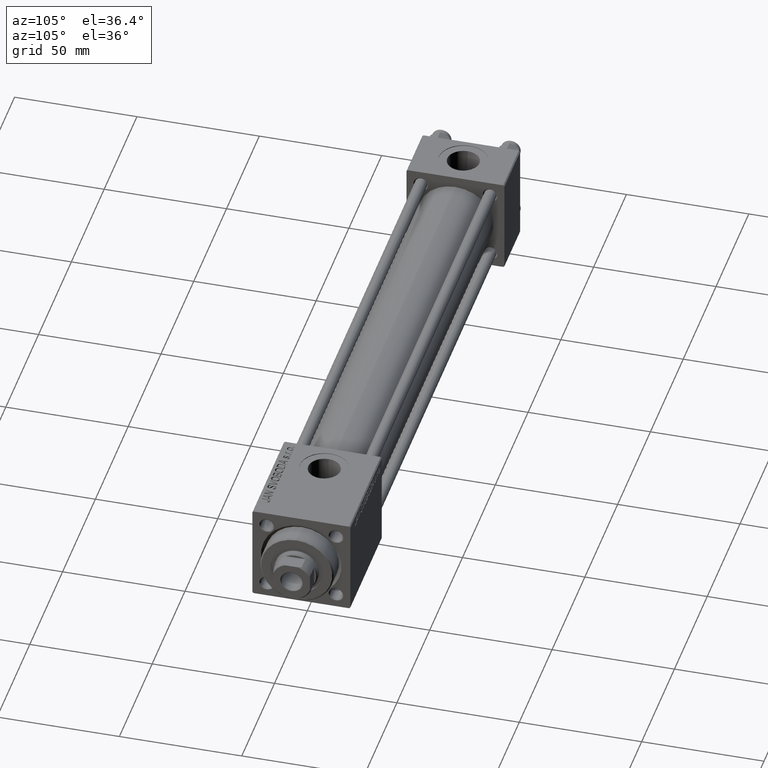
[diagram: clean part render]
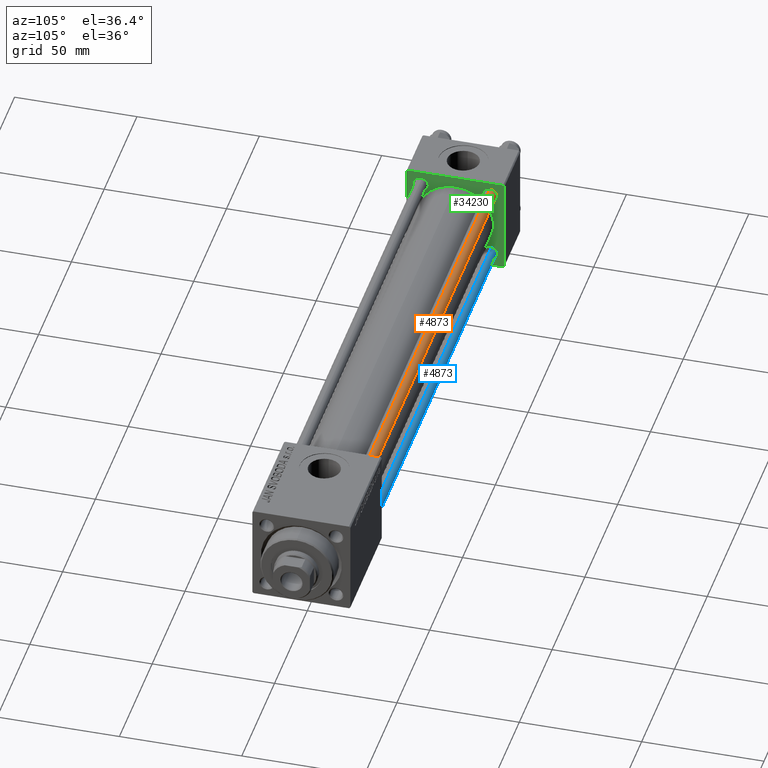
[diagram: same view with three faces highlighted in distinct colors, each labeled with its STEP entity id]
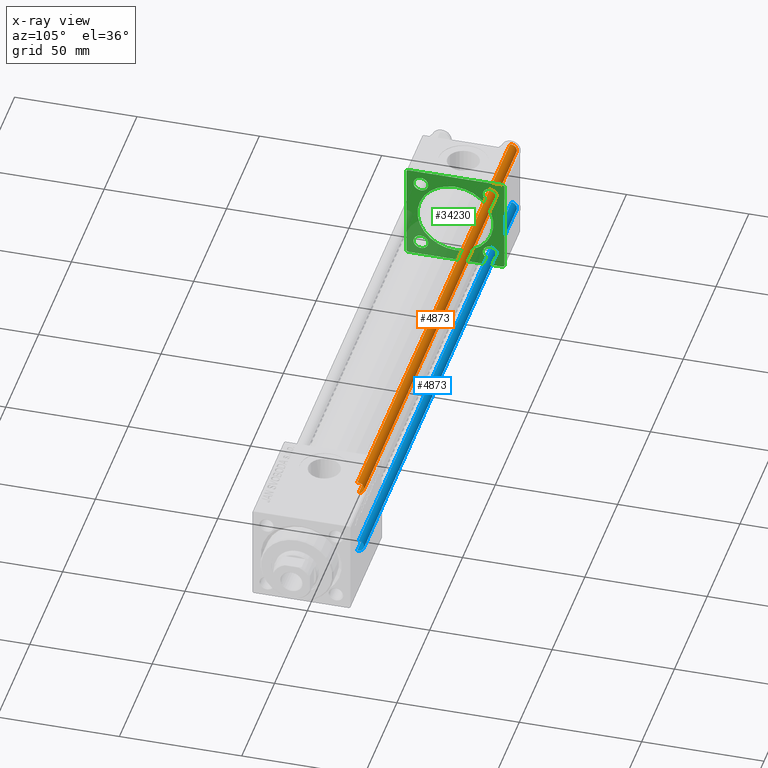
[diagram: x-ray of the same camera — body ghosted, the three highlighted faces saturated]
A machine part, auxiliary view with three faces highlighted in distinct colors.
The next image is the same camera in x-ray (body ghosted, the three faces saturated) — at least one of them is partly hidden behind the body in this view.
Their STEP definitions:

[orange] entity #4873 — the highlighted cylindrical surface (edge-blend (fillet) strip) has radius 2.5 mm, axis along (-1, 0, 0).
#599 = DIRECTION ( 'NONE',  ( -0.000000000000000000, -0.000000000000000000, 1.000000000000000000 ) ) ;
#1707 = EDGE_CURVE ( 'NONE', #17046, #14481, #45787, .T. ) ;
#2051 = DIRECTION ( 'NONE',  ( -0.000000000000000000, -0.000000000000000000, -1.000000000000000000 ) ) ;
#2419 = CIRCLE ( 'NONE', #20934, 2.500000000000000000 ) ;
#2441 = ORIENTED_EDGE ( 'NONE', *, *, #7138, .T. ) ;
#3160 = VERTEX_POINT ( 'NONE', #46128 ) ;
#4580 = EDGE_LOOP ( 'NONE', ( #50824, #2441, #40795, #43653 ) ) ;
#4873 = ADVANCED_FACE ( 'NONE', ( #44772 ), #32668, .T. ) ;
#7138 = EDGE_CURVE ( 'NONE', #20072, #3160, #48231, .T. ) ;
#7643 = DIRECTION ( 'NONE',  ( -0.000000000000000000, -0.000000000000000000, -1.000000000000000000 ) ) ;
#8498 = AXIS2_PLACEMENT_3D ( 'NONE', #17162, #48801, #41402 ) ;
#13311 = CARTESIAN_POINT ( 'NONE',  ( 2.500000000000000000, 3.061616997868383141E-16, 233.5000000000000284 ) ) ;
#14481 = VERTEX_POINT ( 'NONE', #24799 ) ;
#16658 = DIRECTION ( 'NONE',  ( 1.000000000000000000, 0.000000000000000000, 0.000000000000000000 ) ) ;
#17046 = VERTEX_POINT ( 'NONE', #17720 ) ;
#17162 = CARTESIAN_POINT ( 'NONE',  ( 0.000000000000000000, 0.000000000000000000, 233.5000000000000284 ) ) ;
#17720 = CARTESIAN_POINT ( 'NONE',  ( -2.500000000000000000, 0.000000000000000000, 233.5000000000000284 ) ) ;
#20072 = VERTEX_POINT ( 'NONE', #13311 ) ;
#20614 = CARTESIAN_POINT ( 'NONE',  ( 0.000000000000000000, 0.000000000000000000, 0.5000000000000281997 ) ) ;
#20934 = AXIS2_PLACEMENT_3D ( 'NONE', #20614, #599, #16658 ) ;
#21064 = DIRECTION ( 'NONE',  ( -1.000000000000000000, 0.000000000000000000, 0.000000000000000000 ) ) ;
#21587 = DIRECTION ( 'NONE',  ( -0.000000000000000000, -0.000000000000000000, -1.000000000000000000 ) ) ;
#23427 = EDGE_CURVE ( 'NONE', #3160, #14481, #2419, .T. ) ;
#23556 = VECTOR ( 'NONE', #2051, 1000.000000000000000 ) ;
#24799 = CARTESIAN_POINT ( 'NONE',  ( -2.500000000000000000, 0.000000000000000000, 0.5000000000000281997 ) ) ;
#32668 = CYLINDRICAL_SURFACE ( 'NONE', #37952, 2.500000000000000000 ) ;
#34596 = CIRCLE ( 'NONE', #8498, 2.500000000000000000 ) ;
#36382 = VECTOR ( 'NONE', #7643, 1000.000000000000000 ) ;
#37952 = AXIS2_PLACEMENT_3D ( 'NONE', #48748, #21587, #21064 ) ;
#38078 = EDGE_CURVE ( 'NONE', #17046, #20072, #34596, .T. ) ;
#38141 = CARTESIAN_POINT ( 'NONE',  ( -2.500000000000000000, 0.000000000000000000, 234.0000000000000000 ) ) ;
#39537 = CARTESIAN_POINT ( 'NONE',  ( 2.500000000000000000, 3.061616997868383141E-16, 234.0000000000000000 ) ) ;
#40795 = ORIENTED_EDGE ( 'NONE', *, *, #23427, .T. ) ;
#41402 = DIRECTION ( 'NONE',  ( 1.000000000000000000, 0.000000000000000000, 0.000000000000000000 ) ) ;
#43653 = ORIENTED_EDGE ( 'NONE', *, *, #1707, .F. ) ;
#44772 = FACE_OUTER_BOUND ( 'NONE', #4580, .T. ) ;
#45787 = LINE ( 'NONE', #38141, #23556 ) ;
#46128 = CARTESIAN_POINT ( 'NONE',  ( 2.500000000000000000, 3.061616997868383141E-16, 0.5000000000000281997 ) ) ;
#48231 = LINE ( 'NONE', #39537, #36382 ) ;
#48748 = CARTESIAN_POINT ( 'NONE',  ( 0.000000000000000000, 0.000000000000000000, 234.0000000000000000 ) ) ;
#48801 = DIRECTION ( 'NONE',  ( 0.000000000000000000, 0.000000000000000000, -1.000000000000000000 ) ) ;
#50824 = ORIENTED_EDGE ( 'NONE', *, *, #38078, .T. ) ;

[blue] entity #4873 — the highlighted cylindrical surface (edge-blend (fillet) strip) has radius 2.5 mm, axis along (1, -0, 0).
#599 = DIRECTION ( 'NONE',  ( -0.000000000000000000, -0.000000000000000000, 1.000000000000000000 ) ) ;
#1707 = EDGE_CURVE ( 'NONE', #17046, #14481, #45787, .T. ) ;
#2051 = DIRECTION ( 'NONE',  ( -0.000000000000000000, -0.000000000000000000, -1.000000000000000000 ) ) ;
#2419 = CIRCLE ( 'NONE', #20934, 2.500000000000000000 ) ;
#2441 = ORIENTED_EDGE ( 'NONE', *, *, #7138, .T. ) ;
#3160 = VERTEX_POINT ( 'NONE', #46128 ) ;
#4580 = EDGE_LOOP ( 'NONE', ( #50824, #2441, #40795, #43653 ) ) ;
#4873 = ADVANCED_FACE ( 'NONE', ( #44772 ), #32668, .T. ) ;
#7138 = EDGE_CURVE ( 'NONE', #20072, #3160, #48231, .T. ) ;
#7643 = DIRECTION ( 'NONE',  ( -0.000000000000000000, -0.000000000000000000, -1.000000000000000000 ) ) ;
#8498 = AXIS2_PLACEMENT_3D ( 'NONE', #17162, #48801, #41402 ) ;
#13311 = CARTESIAN_POINT ( 'NONE',  ( 2.500000000000000000, 3.061616997868383141E-16, 233.5000000000000284 ) ) ;
#14481 = VERTEX_POINT ( 'NONE', #24799 ) ;
#16658 = DIRECTION ( 'NONE',  ( 1.000000000000000000, 0.000000000000000000, 0.000000000000000000 ) ) ;
#17046 = VERTEX_POINT ( 'NONE', #17720 ) ;
#17162 = CARTESIAN_POINT ( 'NONE',  ( 0.000000000000000000, 0.000000000000000000, 233.5000000000000284 ) ) ;
#17720 = CARTESIAN_POINT ( 'NONE',  ( -2.500000000000000000, 0.000000000000000000, 233.5000000000000284 ) ) ;
#20072 = VERTEX_POINT ( 'NONE', #13311 ) ;
#20614 = CARTESIAN_POINT ( 'NONE',  ( 0.000000000000000000, 0.000000000000000000, 0.5000000000000281997 ) ) ;
#20934 = AXIS2_PLACEMENT_3D ( 'NONE', #20614, #599, #16658 ) ;
#21064 = DIRECTION ( 'NONE',  ( -1.000000000000000000, 0.000000000000000000, 0.000000000000000000 ) ) ;
#21587 = DIRECTION ( 'NONE',  ( -0.000000000000000000, -0.000000000000000000, -1.000000000000000000 ) ) ;
#23427 = EDGE_CURVE ( 'NONE', #3160, #14481, #2419, .T. ) ;
#23556 = VECTOR ( 'NONE', #2051, 1000.000000000000000 ) ;
#24799 = CARTESIAN_POINT ( 'NONE',  ( -2.500000000000000000, 0.000000000000000000, 0.5000000000000281997 ) ) ;
#32668 = CYLINDRICAL_SURFACE ( 'NONE', #37952, 2.500000000000000000 ) ;
#34596 = CIRCLE ( 'NONE', #8498, 2.500000000000000000 ) ;
#36382 = VECTOR ( 'NONE', #7643, 1000.000000000000000 ) ;
#37952 = AXIS2_PLACEMENT_3D ( 'NONE', #48748, #21587, #21064 ) ;
#38078 = EDGE_CURVE ( 'NONE', #17046, #20072, #34596, .T. ) ;
#38141 = CARTESIAN_POINT ( 'NONE',  ( -2.500000000000000000, 0.000000000000000000, 234.0000000000000000 ) ) ;
#39537 = CARTESIAN_POINT ( 'NONE',  ( 2.500000000000000000, 3.061616997868383141E-16, 234.0000000000000000 ) ) ;
#40795 = ORIENTED_EDGE ( 'NONE', *, *, #23427, .T. ) ;
#41402 = DIRECTION ( 'NONE',  ( 1.000000000000000000, 0.000000000000000000, 0.000000000000000000 ) ) ;
#43653 = ORIENTED_EDGE ( 'NONE', *, *, #1707, .F. ) ;
#44772 = FACE_OUTER_BOUND ( 'NONE', #4580, .T. ) ;
#45787 = LINE ( 'NONE', #38141, #23556 ) ;
#46128 = CARTESIAN_POINT ( 'NONE',  ( 2.500000000000000000, 3.061616997868383141E-16, 0.5000000000000281997 ) ) ;
#48231 = LINE ( 'NONE', #39537, #36382 ) ;
#48748 = CARTESIAN_POINT ( 'NONE',  ( 0.000000000000000000, 0.000000000000000000, 234.0000000000000000 ) ) ;
#48801 = DIRECTION ( 'NONE',  ( 0.000000000000000000, 0.000000000000000000, -1.000000000000000000 ) ) ;
#50824 = ORIENTED_EDGE ( 'NONE', *, *, #38078, .T. ) ;

[green] entity #34230 — the highlighted planar face has unit normal (-1, 0, 0).
#442 = ORIENTED_EDGE ( 'NONE', *, *, #37705, .T. ) ;
#463 = CARTESIAN_POINT ( 'NONE',  ( 24.00000000000000000, -14.14999999999999503, -14.15000000000000391 ) ) ;
#851 = LINE ( 'NONE', #48809, #19783 ) ;
#1072 = CARTESIAN_POINT ( 'NONE',  ( 24.00000000000000000, 14.14999999999999858, 14.15000000000000036 ) ) ;
#1080 = VERTEX_POINT ( 'NONE', #1981 ) ;
#1460 = CARTESIAN_POINT ( 'NONE',  ( 24.00000000000000000, -14.14999999999999503, 14.15000000000000391 ) ) ;
#1609 = ORIENTED_EDGE ( 'NONE', *, *, #9978, .T. ) ;
#1680 = CARTESIAN_POINT ( 'NONE',  ( 24.00000000000000000, -14.14999999999999503, 11.15000000000000036 ) ) ;
#1981 = CARTESIAN_POINT ( 'NONE',  ( 24.00000000000000000, -14.14999999999999503, -11.15000000000000036 ) ) ;
#2556 = DIRECTION ( 'NONE',  ( 0.000000000000000000, -1.000000000000000000, -2.602085213965210149E-16 ) ) ;
#2615 = VERTEX_POINT ( 'NONE', #1680 ) ;
#2995 = CARTESIAN_POINT ( 'NONE',  ( 24.00000000000000000, -14.14999999999999503, 14.15000000000000391 ) ) ;
#3156 = DIRECTION ( 'NONE',  ( 0.000000000000000000, 0.000000000000000000, 1.000000000000000000 ) ) ;
#3511 = CARTESIAN_POINT ( 'NONE',  ( 24.00000000000000000, 19.50000000000000711, -20.00000000000000711 ) ) ;
#4447 = CIRCLE ( 'NONE', #33849, 15.50000000000000000 ) ;
#4498 = PLANE ( 'NONE',  #42834 ) ;
#4561 = VERTEX_POINT ( 'NONE', #3511 ) ;
#4825 = LINE ( 'NONE', #12222, #10238 ) ;
#4953 = ORIENTED_EDGE ( 'NONE', *, *, #47689, .T. ) ;
#5913 = CARTESIAN_POINT ( 'NONE',  ( 24.00000000000000000, -14.14999999999999503, 17.15000000000000924 ) ) ;
#6017 = CARTESIAN_POINT ( 'NONE',  ( 24.00000000000000000, 14.14999999999999858, 17.14999999999994884 ) ) ;
#6049 = AXIS2_PLACEMENT_3D ( 'NONE', #27717, #23774, #19564 ) ;
#6065 = DIRECTION ( 'NONE',  ( 0.000000000000000000, 0.000000000000000000, -1.000000000000000000 ) ) ;
#6386 = AXIS2_PLACEMENT_3D ( 'NONE', #29707, #8910, #45785 ) ;
#6450 = EDGE_LOOP ( 'NONE', ( #14602, #23912 ) ) ;
#6529 = DIRECTION ( 'NONE',  ( 0.000000000000000000, 8.673617379884036705E-17, -1.000000000000000000 ) ) ;
#6902 = EDGE_LOOP ( 'NONE', ( #28058, #31134 ) ) ;
#7105 = CARTESIAN_POINT ( 'NONE',  ( 24.00000000000000000, 20.00000000000000000, 20.00000000000000000 ) ) ;
#7188 = CARTESIAN_POINT ( 'NONE',  ( 24.00000000000000000, 20.00000000000000000, 19.49999999999999289 ) ) ;
#7289 = VERTEX_POINT ( 'NONE', #39417 ) ;
#7382 = ORIENTED_EDGE ( 'NONE', *, *, #50593, .T. ) ;
#7577 = CARTESIAN_POINT ( 'NONE',  ( 24.00000000000000000, -14.14999999999999503, -17.15000000000000924 ) ) ;
#7715 = DIRECTION ( 'NONE',  ( -1.000000000000000000, -0.000000000000000000, -0.000000000000000000 ) ) ;
#8046 = AXIS2_PLACEMENT_3D ( 'NONE', #463, #9390, #8613 ) ;
#8295 = CIRCLE ( 'NONE', #30174, 3.000000000000004441 ) ;
#8363 = EDGE_CURVE ( 'NONE', #43205, #7289, #4447, .T. ) ;
#8613 = DIRECTION ( 'NONE',  ( 0.000000000000000000, 0.000000000000000000, 1.000000000000000000 ) ) ;
#8910 = DIRECTION ( 'NONE',  ( -1.000000000000000000, -0.000000000000000000, -0.000000000000000000 ) ) ;
#8951 = EDGE_CURVE ( 'NONE', #7289, #43205, #22114, .T. ) ;
#8963 = CARTESIAN_POINT ( 'NONE',  ( 24.00000000000000000, 0.000000000000000000, 0.000000000000000000 ) ) ;
#8966 = CARTESIAN_POINT ( 'NONE',  ( 23.99999999999999289, -2.602085213965210642E-15, 0.000000000000000000 ) ) ;
#9390 = DIRECTION ( 'NONE',  ( -1.000000000000000000, -0.000000000000000000, -0.000000000000000000 ) ) ;
#9485 = FACE_BOUND ( 'NONE', #23583, .T. ) ;
#9978 = EDGE_CURVE ( 'NONE', #28314, #38917, #15311, .T. ) ;
#10238 = VECTOR ( 'NONE', #36719, 1000.000000000000114 ) ;
#10477 = CARTESIAN_POINT ( 'NONE',  ( 24.00000000000000000, -20.00000000000000355, 19.99999999999998934 ) ) ;
#12222 = CARTESIAN_POINT ( 'NONE',  ( 24.00000000000000000, -20.00000000000000355, 19.49999999999998224 ) ) ;
#12669 = CARTESIAN_POINT ( 'NONE',  ( 24.00000000000000000, 14.14999999999999858, -14.15000000000000036 ) ) ;
#12923 = FACE_BOUND ( 'NONE', #48537, .T. ) ;
#13096 = VERTEX_POINT ( 'NONE', #30984 ) ;
#13481 = CARTESIAN_POINT ( 'NONE',  ( 24.00000000000000000, 14.14999999999999858, 11.15000000000005365 ) ) ;
#14439 = AXIS2_PLACEMENT_3D ( 'NONE', #38979, #46624, #3156 ) ;
#14460 = DIRECTION ( 'NONE',  ( -0.000000000000000000, 0.7071067811865524577, 0.7071067811865426878 ) ) ;
#14602 = ORIENTED_EDGE ( 'NONE', *, *, #8363, .F. ) ;
#14621 = ORIENTED_EDGE ( 'NONE', *, *, #24558, .F. ) ;
#15311 = CIRCLE ( 'NONE', #6049, 2.999999999999948930 ) ;
#15676 = VERTEX_POINT ( 'NONE', #45862 ) ;
#15763 = ORIENTED_EDGE ( 'NONE', *, *, #50078, .F. ) ;
#16612 = DIRECTION ( 'NONE',  ( -0.000000000000000000, 0.000000000000000000, 1.000000000000000000 ) ) ;
#16618 = DIRECTION ( 'NONE',  ( 0.000000000000000000, 0.000000000000000000, 1.000000000000000000 ) ) ;
#16886 = CIRCLE ( 'NONE', #46328, 2.999999999999948930 ) ;
#16910 = DIRECTION ( 'NONE',  ( 0.000000000000000000, 0.000000000000000000, 1.000000000000000000 ) ) ;
#17139 = DIRECTION ( 'NONE',  ( -1.000000000000000000, -0.000000000000000000, -0.000000000000000000 ) ) ;
#17377 = AXIS2_PLACEMENT_3D ( 'NONE', #39004, #23458, #50598 ) ;
#18077 = LINE ( 'NONE', #30704, #50048 ) ;
#18152 = CIRCLE ( 'NONE', #39224, 3.000000000000004441 ) ;
#18241 = VERTEX_POINT ( 'NONE', #28431 ) ;
#18673 = CARTESIAN_POINT ( 'NONE',  ( 24.00000000000000000, 20.00000000000000000, -19.50000000000002132 ) ) ;
#19051 = LINE ( 'NONE', #43808, #35183 ) ;
#19074 = EDGE_LOOP ( 'NONE', ( #24046, #36018 ) ) ;
#19168 = ORIENTED_EDGE ( 'NONE', *, *, #43345, .T. ) ;
#19449 = AXIS2_PLACEMENT_3D ( 'NONE', #1072, #17139, #42404 ) ;
#19564 = DIRECTION ( 'NONE',  ( 0.000000000000000000, 0.000000000000000000, 1.000000000000000000 ) ) ;
#19783 = VECTOR ( 'NONE', #32476, 1000.000000000000000 ) ;
#19888 = ORIENTED_EDGE ( 'NONE', *, *, #27654, .T. ) ;
#20143 = EDGE_CURVE ( 'NONE', #2615, #42275, #18152, .T. ) ;
#20579 = DIRECTION ( 'NONE',  ( -1.000000000000000000, -0.000000000000000000, -0.000000000000000000 ) ) ;
#20689 = EDGE_CURVE ( 'NONE', #28410, #1080, #51000, .T. ) ;
#21605 = FACE_BOUND ( 'NONE', #6450, .T. ) ;
#21829 = LINE ( 'NONE', #10477, #29146 ) ;
#21882 = EDGE_CURVE ( 'NONE', #15676, #42154, #21829, .T. ) ;
#22114 = CIRCLE ( 'NONE', #14439, 15.50000000000000000 ) ;
#22576 = CARTESIAN_POINT ( 'NONE',  ( 24.00000000000000000, 20.00000000000000000, 20.00000000000000000 ) ) ;
#22755 = EDGE_CURVE ( 'NONE', #1080, #28410, #30751, .T. ) ;
#22999 = DIRECTION ( 'NONE',  ( 0.000000000000000000, -0.7071067811865425767, 0.7071067811865525687 ) ) ;
#23346 = EDGE_CURVE ( 'NONE', #42275, #2615, #8295, .T. ) ;
#23458 = DIRECTION ( 'NONE',  ( -1.000000000000000000, -0.000000000000000000, -0.000000000000000000 ) ) ;
#23583 = EDGE_LOOP ( 'NONE', ( #42603, #25467 ) ) ;
#23774 = DIRECTION ( 'NONE',  ( -1.000000000000000000, -0.000000000000000000, -0.000000000000000000 ) ) ;
#23912 = ORIENTED_EDGE ( 'NONE', *, *, #8951, .F. ) ;
#24046 = ORIENTED_EDGE ( 'NONE', *, *, #20689, .T. ) ;
#24558 = EDGE_CURVE ( 'NONE', #46372, #26671, #46118, .T. ) ;
#25293 = DIRECTION ( 'NONE',  ( 1.000000000000000000, 0.000000000000000000, 0.000000000000000000 ) ) ;
#25467 = ORIENTED_EDGE ( 'NONE', *, *, #28057, .T. ) ;
#25556 = DIRECTION ( 'NONE',  ( -1.000000000000000000, 0.000000000000000000, -0.000000000000000000 ) ) ;
#26385 = VECTOR ( 'NONE', #14460, 1000.000000000000000 ) ;
#26671 = VERTEX_POINT ( 'NONE', #44377 ) ;
#27043 = LINE ( 'NONE', #22576, #39726 ) ;
#27654 = EDGE_CURVE ( 'NONE', #46372, #13096, #19051, .T. ) ;
#27717 = CARTESIAN_POINT ( 'NONE',  ( 24.00000000000000000, 14.14999999999999858, 14.15000000000000036 ) ) ;
#28057 = EDGE_CURVE ( 'NONE', #28752, #32892, #29271, .T. ) ;
#28058 = ORIENTED_EDGE ( 'NONE', *, *, #20143, .T. ) ;
#28314 = VERTEX_POINT ( 'NONE', #6017 ) ;
#28410 = VERTEX_POINT ( 'NONE', #7577 ) ;
#28431 = CARTESIAN_POINT ( 'NONE',  ( 24.00000000000000000, -19.49999999999999289, 19.99999999999998934 ) ) ;
#28752 = VERTEX_POINT ( 'NONE', #36233 ) ;
#29041 = CARTESIAN_POINT ( 'NONE',  ( 24.00000000000000000, 14.14999999999999858, -17.14999999999994884 ) ) ;
#29146 = VECTOR ( 'NONE', #6529, 1000.000000000000000 ) ;
#29271 = CIRCLE ( 'NONE', #17377, 2.999999999999948930 ) ;
#29707 = CARTESIAN_POINT ( 'NONE',  ( 24.00000000000000000, -14.14999999999999503, -14.15000000000000391 ) ) ;
#29896 = DIRECTION ( 'NONE',  ( 0.000000000000000000, 0.000000000000000000, 1.000000000000000000 ) ) ;
#30174 = AXIS2_PLACEMENT_3D ( 'NONE', #2995, #7715, #16910 ) ;
#30704 = CARTESIAN_POINT ( 'NONE',  ( 24.00000000000000000, -19.50000000000000711, -20.00000000000000000 ) ) ;
#30751 = CIRCLE ( 'NONE', #8046, 3.000000000000004441 ) ;
#30984 = CARTESIAN_POINT ( 'NONE',  ( 24.00000000000000000, 19.50000000000000000, 20.00000000000000000 ) ) ;
#31060 = CARTESIAN_POINT ( 'NONE',  ( 24.00000000000000000, -19.50000000000000711, -20.00000000000000000 ) ) ;
#31134 = ORIENTED_EDGE ( 'NONE', *, *, #23346, .T. ) ;
#32125 = VECTOR ( 'NONE', #6065, 1000.000000000000000 ) ;
#32476 = DIRECTION ( 'NONE',  ( 0.000000000000000000, -1.000000000000000000, 1.734723475976807094E-16 ) ) ;
#32892 = VERTEX_POINT ( 'NONE', #29041 ) ;
#33141 = CARTESIAN_POINT ( 'NONE',  ( 23.99999999999999289, -2.602085213965210642E-15, 15.50000000000000000 ) ) ;
#33849 = AXIS2_PLACEMENT_3D ( 'NONE', #8966, #25293, #37153 ) ;
#34150 = DIRECTION ( 'NONE',  ( 0.000000000000000000, 0.7071067811865401342, -0.7071067811865549002 ) ) ;
#34230 = ADVANCED_FACE ( 'NONE', ( #41366, #9485, #40602, #12923, #21605, #45837 ), #4498, .F. ) ;
#34482 = LINE ( 'NONE', #18673, #26385 ) ;
#35183 = VECTOR ( 'NONE', #22999, 999.9999999999998863 ) ;
#36018 = ORIENTED_EDGE ( 'NONE', *, *, #22755, .T. ) ;
#36233 = CARTESIAN_POINT ( 'NONE',  ( 24.00000000000000000, 14.14999999999999858, -11.15000000000005365 ) ) ;
#36719 = DIRECTION ( 'NONE',  ( -0.000000000000000000, -0.7071067811865500152, -0.7071067811865451302 ) ) ;
#37153 = DIRECTION ( 'NONE',  ( 0.000000000000000000, 0.000000000000000000, 1.000000000000000000 ) ) ;
#37578 = EDGE_CURVE ( 'NONE', #32892, #28752, #16886, .T. ) ;
#37705 = EDGE_CURVE ( 'NONE', #38917, #28314, #48904, .T. ) ;
#37800 = VERTEX_POINT ( 'NONE', #31060 ) ;
#38917 = VERTEX_POINT ( 'NONE', #13481 ) ;
#38979 = CARTESIAN_POINT ( 'NONE',  ( 23.99999999999999289, -2.602085213965210642E-15, 0.000000000000000000 ) ) ;
#39004 = CARTESIAN_POINT ( 'NONE',  ( 24.00000000000000000, 14.14999999999999858, -14.15000000000000036 ) ) ;
#39224 = AXIS2_PLACEMENT_3D ( 'NONE', #1460, #42534, #29896 ) ;
#39417 = CARTESIAN_POINT ( 'NONE',  ( 23.99999999999999289, -7.038826752868131828E-16, -15.50000000000000000 ) ) ;
#39726 = VECTOR ( 'NONE', #2556, 1000.000000000000000 ) ;
#40602 = FACE_BOUND ( 'NONE', #6902, .T. ) ;
#41366 = FACE_BOUND ( 'NONE', #19074, .T. ) ;
#42154 = VERTEX_POINT ( 'NONE', #45712 ) ;
#42275 = VERTEX_POINT ( 'NONE', #5913 ) ;
#42404 = DIRECTION ( 'NONE',  ( 0.000000000000000000, 0.000000000000000000, 1.000000000000000000 ) ) ;
#42534 = DIRECTION ( 'NONE',  ( -1.000000000000000000, -0.000000000000000000, -0.000000000000000000 ) ) ;
#42603 = ORIENTED_EDGE ( 'NONE', *, *, #37578, .T. ) ;
#42834 = AXIS2_PLACEMENT_3D ( 'NONE', #8963, #25556, #16612 ) ;
#43205 = VERTEX_POINT ( 'NONE', #33141 ) ;
#43345 = EDGE_CURVE ( 'NONE', #13096, #18241, #27043, .T. ) ;
#43422 = EDGE_CURVE ( 'NONE', #18241, #15676, #4825, .T. ) ;
#43808 = CARTESIAN_POINT ( 'NONE',  ( 24.00000000000000000, 19.50000000000000000, 20.00000000000000000 ) ) ;
#44218 = ORIENTED_EDGE ( 'NONE', *, *, #21882, .T. ) ;
#44377 = CARTESIAN_POINT ( 'NONE',  ( 24.00000000000000000, 20.00000000000000000, -19.50000000000002132 ) ) ;
#45712 = CARTESIAN_POINT ( 'NONE',  ( 24.00000000000000000, -20.00000000000000000, -19.49999999999999645 ) ) ;
#45785 = DIRECTION ( 'NONE',  ( 0.000000000000000000, 0.000000000000000000, 1.000000000000000000 ) ) ;
#45837 = FACE_OUTER_BOUND ( 'NONE', #45936, .T. ) ;
#45862 = CARTESIAN_POINT ( 'NONE',  ( 24.00000000000000000, -20.00000000000000355, 19.49999999999998224 ) ) ;
#45936 = EDGE_LOOP ( 'NONE', ( #15763, #4953, #14621, #19888, #19168, #50519, #44218, #7382 ) ) ;
#46118 = LINE ( 'NONE', #7105, #32125 ) ;
#46328 = AXIS2_PLACEMENT_3D ( 'NONE', #12669, #20579, #16618 ) ;
#46372 = VERTEX_POINT ( 'NONE', #7188 ) ;
#46624 = DIRECTION ( 'NONE',  ( 1.000000000000000000, 0.000000000000000000, 0.000000000000000000 ) ) ;
#47689 = EDGE_CURVE ( 'NONE', #4561, #26671, #34482, .T. ) ;
#48537 = EDGE_LOOP ( 'NONE', ( #442, #1609 ) ) ;
#48809 = CARTESIAN_POINT ( 'NONE',  ( 24.00000000000000000, 20.00000000000000000, -20.00000000000000711 ) ) ;
#48904 = CIRCLE ( 'NONE', #19449, 2.999999999999948930 ) ;
#50048 = VECTOR ( 'NONE', #34150, 1000.000000000000000 ) ;
#50078 = EDGE_CURVE ( 'NONE', #4561, #37800, #851, .T. ) ;
#50519 = ORIENTED_EDGE ( 'NONE', *, *, #43422, .T. ) ;
#50593 = EDGE_CURVE ( 'NONE', #42154, #37800, #18077, .T. ) ;
#50598 = DIRECTION ( 'NONE',  ( 0.000000000000000000, 0.000000000000000000, 1.000000000000000000 ) ) ;
#51000 = CIRCLE ( 'NONE', #6386, 3.000000000000004441 ) ;